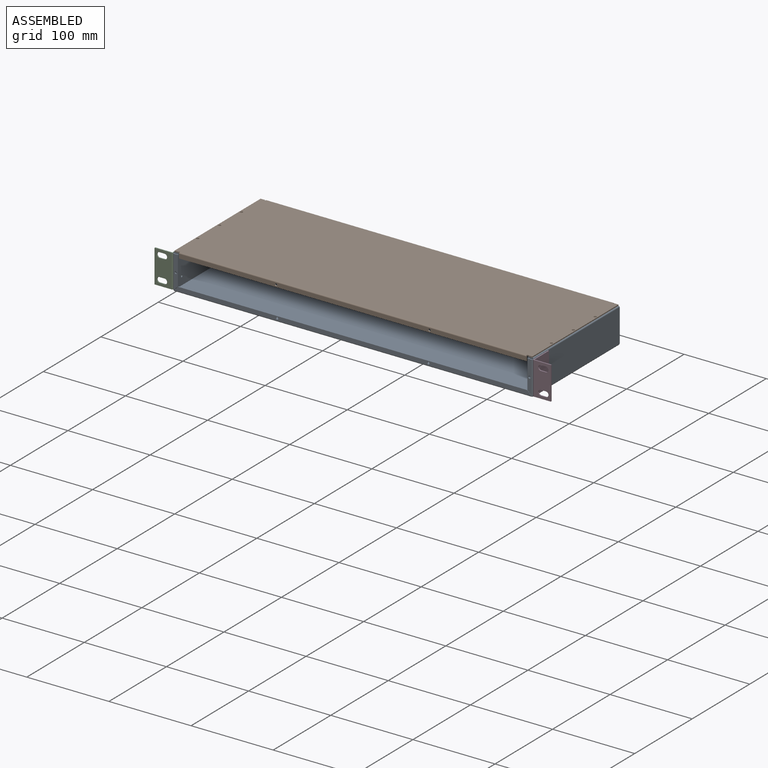
[diagram: assembled view]
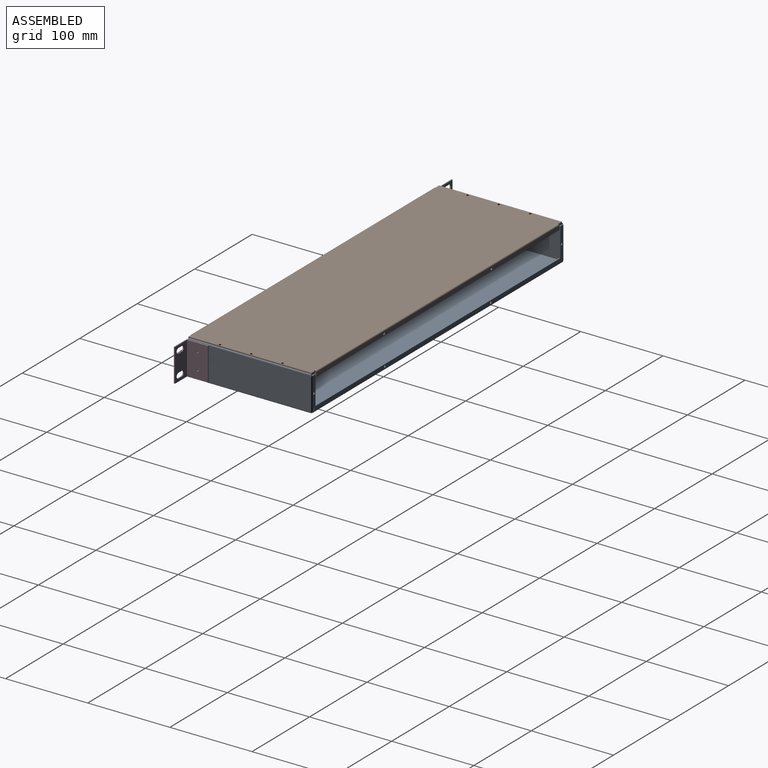
[diagram: assembled view, second angle]
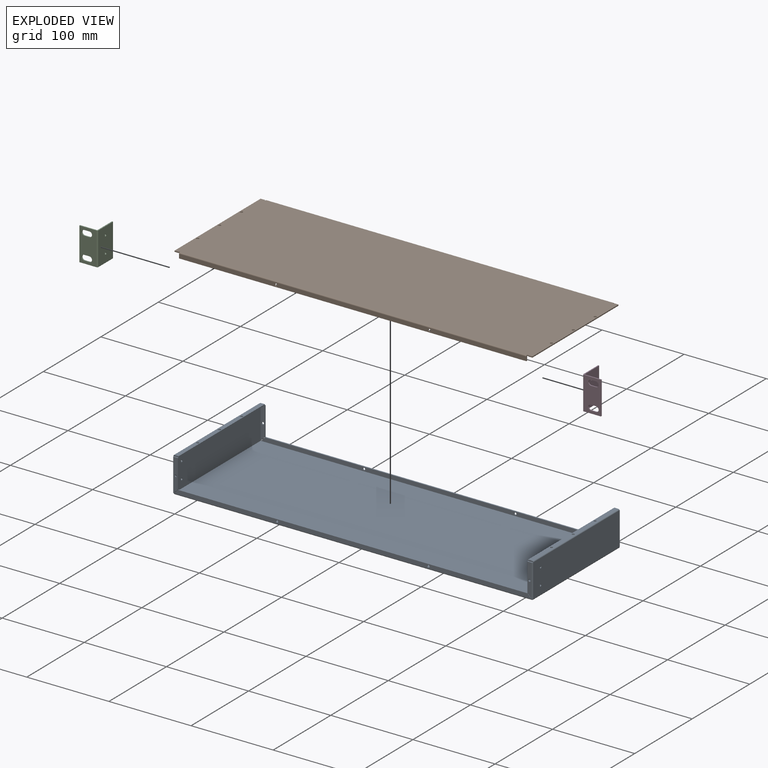
[diagram: exploded view]
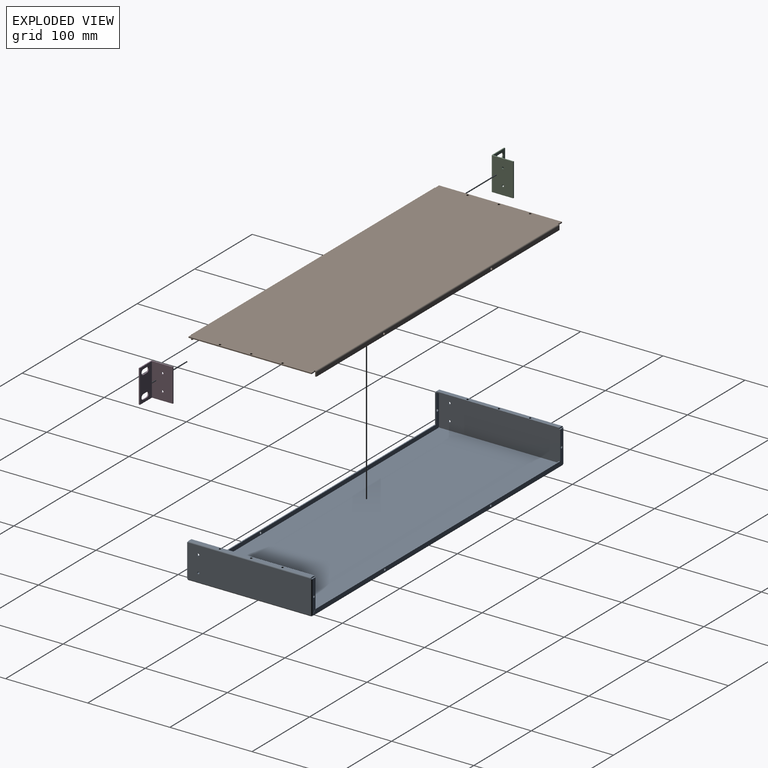
[diagram: exploded view, second angle]
ASSEMBLY  parts=4 mates=3
PART A: 120 faces, bbox 438.2x152.4x42.9 mm
  f0: plane 1.3x0.18mm, normal (0,1,0), area 0.2mm2, adj f6,f7,f15,f28
  f1: plane 1.3x0.23mm, normal (0,1,0), area 0.3mm2, adj f6,f7,f14,f42
  f2: plane 1.3x0.23mm, normal (0,-1,0), area 0.3mm2, adj f6,f7,f25,f43
  f3: plane 1.3x0.18mm, normal (0,-1,0), area 0.2mm2, adj f6,f7,f24,f29
  f4: cylinder r=1.27mm len=2.54mm, axis (-1,0,0), area 10.3mm2, adj f6,f7
  f5: cylinder r=1.27mm len=2.54mm, axis (-1,0,0), area 10.3mm2, adj f6,f7
  f6: plane 149.76x40.26mm, normal (1,0,0), area 6019mm2, adj f0,f1,f2,f3,f4,f5,f16,f26
  f7: plane 149.76x40.26mm, normal (-1,0,0), area 6019mm2, adj f0,f1,f2,f3,f4,f5,f17,f27
  f8: plane 34.82x1.3mm, normal (-1,0,0), area 45.1mm2, adj f9,f11,f12,f13
  f9: plane 5.03x1.3mm, normal (0,0,1), area 6.5mm2, adj f8,f12,f13,f14
  f10: cylinder r=1.42mm len=2.85mm, axis (0,1,0), area 11.6mm2, adj f12,f13
  f11: plane 5.03x5.03mm, normal (-0.71,0,-0.71), area 9.2mm2, adj f8,f12,f13,f15
  f12: plane 39.85x5.03mm, normal (0,1,0), area 181.4mm2, adj f8,f9,f10,f11,f16
  f13: plane 39.85x5.03mm, normal (0,-1,0), area 181.4mm2, adj f8,f9,f10,f11,f17
  f14: plane 1.32x1.32mm, normal (0,0,1), area 1.4mm2, adj f1,f9,f16,f17
  f15: plane 1.32x1.32mm, normal (0,0,-1), area 1.4mm2, adj f0,f11,f16,f17
  f16: cylinder r=1.32mm len=39.85mm, axis (0,0,1), area 82.7mm2, adj f6,f12,f14,f15
  f17: cylinder r=0.03mm len=39.85mm, axis (0,0,1), area 1.6mm2, adj f7,f13,f14,f15
  f18: plane 34.82x1.3mm, normal (-1,0,0), area 45.1mm2, adj f19,f21,f22,f23
  f19: plane 5.03x5.03mm, normal (-0.71,0,-0.71), area 9.2mm2, adj f18,f22,f23,f24
  f20: cylinder r=1.42mm len=2.85mm, axis (0,-1,0), area 11.6mm2, adj f22,f23
  f21: plane 5.03x1.3mm, normal (0,0,1), area 6.5mm2, adj f18,f22,f23,f25
  f22: plane 39.85x5.03mm, normal (0,-1,0), area 181.4mm2, adj f18,f19,f20,f21,f26
  f23: plane 39.85x5.03mm, normal (0,1,0), area 181.4mm2, adj f18,f19,f20,f21,f27
  f24: plane 1.32x1.32mm, normal (0,0,-1), area 1.4mm2, adj f3,f19,f26,f27
  f25: plane 1.32x1.32mm, normal (0,0,1), area 1.4mm2, adj f2,f21,f26,f27
  f26: cylinder r=1.32mm len=39.85mm, axis (0,0,-1), area 82.7mm2, adj f6,f22,f24,f25
  f27: cylinder r=0.03mm len=39.85mm, axis (0,0,-1), area 1.6mm2, adj f7,f23,f24,f25
  f28: plane 1.32x1.32mm, normal (0,1,0), area 1.4mm2, adj f0,f30,f31,f48
  f29: plane 1.32x1.32mm, normal (0,-1,0), area 1.4mm2, adj f3,f30,f31,f46
  f30: cylinder r=1.32mm len=149.76mm, axis (0,1,0), area 310.7mm2, adj f6,f28,f29,f50
  f31: cylinder r=0.03mm len=149.76mm, axis (0,1,0), area 6mm2, adj f7,f28,f29,f51
  f32: plane 1.3x0.03mm, normal (1,0,0), area 0mm2, adj f34,f40,f41,f43
  f33: plane 149.81x1.3mm, normal (-1,0,0), area 194.1mm2, adj f34,f39,f40,f41
  f34: plane 5.03x1.3mm, normal (0,-1,0), area 6.5mm2, adj f32,f33,f40,f41
  f35: plane 1.3x0.03mm, normal (1,0,0), area 0mm2, adj f39,f40,f41,f42
  f36: cylinder r=1.42mm len=2.85mm, axis (0,0,1), area 11.6mm2, adj f40,f41
  f37: cylinder r=1.42mm len=2.85mm, axis (0,0,1), area 11.6mm2, adj f40,f41
  f38: cylinder r=1.42mm len=2.85mm, axis (0,0,1), area 11.6mm2, adj f40,f41
  f39: plane 5.03x1.3mm, normal (0,1,0), area 6.5mm2, adj f33,f35,f40,f41
  f40: plane 149.81x5.03mm, normal (0,0,1), area 734.4mm2, adj f32,f33,f34,f35,f36,f37,f38,f39
  f41: plane 149.81x5.03mm, normal (0,0,-1), area 734.4mm2, adj f32,f33,f34,f35,f36,f37,f38,f39
  f42: plane 1.32x1.32mm, normal (0,1,0), area 1.4mm2, adj f1,f35,f44,f45
  f43: plane 1.32x1.32mm, normal (0,-1,0), area 1.4mm2, adj f2,f32,f44,f45
  f44: cylinder r=1.32mm len=149.76mm, axis (0,1,0), area 310.7mm2, adj f6,f40,f42,f43
  f45: cylinder r=0.03mm len=149.76mm, axis (0,1,0), area 6mm2, adj f7,f41,f42,f43
  f46: plane 1.3x0.18mm, normal (0,-1,0), area 0.2mm2, adj f29,f50,f51,f71
  f47: plane 1.3x0.18mm, normal (0,1,0), area 0.2mm2, adj f50,f51,f59,f74
  f48: plane 1.3x0.18mm, normal (0,1,0), area 0.2mm2, adj f28,f50,f51,f60
  f49: plane 1.3x0.18mm, normal (0,-1,0), area 0.2mm2, adj f50,f51,f70,f75
  f50: plane 435.53x149.76mm, normal (0,0,-1), area 65224.8mm2, adj f30,f46,f47,f48,f49,f61,f72,f76
  f51: plane 435.53x149.76mm, normal (0,0,1), area 65224.8mm2, adj f31,f46,f47,f48,f49,f62,f73,f77
  f52: plane 425.12x1.3mm, normal (0,0,1), area 550.7mm2, adj f53,f56,f57,f58
  f53: plane 5.03x5.03mm, normal (0.71,0,0.71), area 9.2mm2, adj f52,f57,f58,f60
  f54: cylinder r=1.42mm len=2.85mm, axis (0,1,0), area 11.6mm2, adj f57,f58
  f55: cylinder r=1.42mm len=2.85mm, axis (0,1,0), area 11.6mm2, adj f57,f58
  f56: plane 5.03x5.03mm, normal (-0.71,0,0.71), area 9.2mm2, adj f52,f57,f58,f59
  f57: plane 435.17x5.03mm, normal (0,1,0), area 2150.6mm2, adj f52,f53,f54,f55,f56,f61
  f58: plane 435.17x5.03mm, normal (0,-1,0), area 2150.6mm2, adj f52,f53,f54,f55,f56,f62
  f59: plane 1.32x1.32mm, normal (-1,0,0), area 1.4mm2, adj f47,f56,f61,f62
  f60: plane 1.32x1.32mm, normal (1,0,0), area 1.4mm2, adj f48,f53,f61,f62
  f61: cylinder r=1.32mm len=435.17mm, axis (-1,0,0), area 902.9mm2, adj f50,f57,f59,f60
  f62: cylinder r=0.03mm len=435.17mm, axis (-1,0,0), area 17.4mm2, adj f51,f58,f59,f60
  f63: plane 425.12x1.3mm, normal (0,0,1), area 550.7mm2, adj f64,f67,f68,f69
  f64: plane 5.03x5.03mm, normal (-0.71,0,0.71), area 9.2mm2, adj f63,f68,f69,f70
  f65: cylinder r=1.42mm len=2.85mm, axis (0,-1,0), area 11.6mm2, adj f68,f69
  f66: cylinder r=1.42mm len=2.85mm, axis (0,-1,0), area 11.6mm2, adj f68,f69
  f67: plane 5.03x5.03mm, normal (0.71,0,0.71), area 9.2mm2, adj f63,f68,f69,f71
  f68: plane 435.17x5.03mm, normal (0,-1,0), area 2150.6mm2, adj f63,f64,f65,f66,f67,f72
  f69: plane 435.17x5.03mm, normal (0,1,0), area 2150.6mm2, adj f63,f64,f65,f66,f67,f73
  f70: plane 1.32x1.32mm, normal (-1,0,0), area 1.4mm2, adj f49,f64,f72,f73
  f71: plane 1.32x1.32mm, normal (1,0,0), area 1.4mm2, adj f46,f67,f72,f73
  f72: cylinder r=1.32mm len=435.17mm, axis (-1,0,0), area 902.9mm2, adj f50,f68,f70,f71
  f73: cylinder r=0.03mm len=435.17mm, axis (-1,0,0), area 17.4mm2, adj f51,f69,f70,f71
  f74: plane 1.32x1.32mm, normal (0,1,0), area 1.4mm2, adj f47,f76,f77,f81
  f75: plane 1.32x1.32mm, normal (0,-1,0), area 1.4mm2, adj f49,f76,f77,f78
  f76: cylinder r=1.32mm len=149.76mm, axis (0,1,0), area 310.7mm2, adj f50,f74,f75,f84
  f77: cylinder r=0.03mm len=149.76mm, axis (0,1,0), area 6mm2, adj f51,f74,f75,f85
  f78: plane 1.3x0.18mm, normal (0,-1,0), area 0.2mm2, adj f75,f84,f85,f93
  f79: plane 1.3x0.23mm, normal (0,-1,0), area 0.3mm2, adj f84,f85,f92,f117
  f80: plane 1.3x0.23mm, normal (0,1,0), area 0.3mm2, adj f84,f85,f103,f116
  f81: plane 1.3x0.18mm, normal (0,1,0), area 0.2mm2, adj f74,f84,f85,f102
  f82: cylinder r=1.27mm len=2.54mm, axis (-1,0,0), area 10.3mm2, adj f84,f85
  f83: cylinder r=1.27mm len=2.54mm, axis (-1,0,0), area 10.3mm2, adj f84,f85
  f84: plane 149.76x40.26mm, normal (-1,0,0), area 6019mm2, adj f76,f78,f79,f80,f81,f82,f83,f94
  f85: plane 149.76x40.26mm, normal (1,0,0), area 6019mm2, adj f77,f78,f79,f80,f81,f82,f83,f95
  f86: plane 34.82x1.3mm, normal (1,0,0), area 45.1mm2, adj f87,f89,f90,f91
  f87: plane 5.03x1.3mm, normal (0,0,1), area 6.5mm2, adj f86,f90,f91,f92
  f88: cylinder r=1.42mm len=2.85mm, axis (0,-1,0), area 11.6mm2, adj f90,f91
  f89: plane 5.03x5.03mm, normal (0.71,0,-0.71), area 9.2mm2, adj f86,f90,f91,f93
  f90: plane 39.85x5.03mm, normal (0,-1,0), area 181.4mm2, adj f86,f87,f88,f89,f94
  f91: plane 39.85x5.03mm, normal (0,1,0), area 181.4mm2, adj f86,f87,f88,f89,f95
  f92: plane 1.32x1.32mm, normal (0,0,1), area 1.4mm2, adj f79,f87,f94,f95
  f93: plane 1.32x1.32mm, normal (0,0,-1), area 1.4mm2, adj f78,f89,f94,f95
  f94: cylinder r=1.32mm len=39.85mm, axis (0,0,1), area 82.7mm2, adj f84,f90,f92,f93
  f95: cylinder r=0.03mm len=39.85mm, axis (0,0,1), area 1.6mm2, adj f85,f91,f92,f93
  f96: plane 34.82x1.3mm, normal (1,0,0), area 45.1mm2, adj f97,f99,f100,f101
  f97: plane 5.03x5.03mm, normal (0.71,0,-0.71), area 9.2mm2, adj f96,f100,f101,f102
  f98: cylinder r=1.42mm len=2.85mm, axis (0,1,0), area 11.6mm2, adj f100,f101
  f99: plane 5.03x1.3mm, normal (0,0,1), area 6.5mm2, adj f96,f100,f101,f103
  f100: plane 39.85x5.03mm, normal (0,1,0), area 181.4mm2, adj f96,f97,f98,f99,f104
  f101: plane 39.85x5.03mm, normal (0,-1,0), area 181.4mm2, adj f96,f97,f98,f99,f105
  f102: plane 1.32x1.32mm, normal (0,0,-1), area 1.4mm2, adj f81,f97,f104,f105
  f103: plane 1.32x1.32mm, normal (0,0,1), area 1.4mm2, adj f80,f99,f104,f105
  f104: cylinder r=1.32mm len=39.85mm, axis (0,0,-1), area 82.7mm2, adj f84,f100,f102,f103
  f105: cylinder r=0.03mm len=39.85mm, axis (0,0,-1), area 1.6mm2, adj f85,f101,f102,f103
  f106: plane 1.3x0.03mm, normal (-1,0,0), area 0mm2, adj f108,f114,f115,f116
  f107: plane 149.81x1.3mm, normal (1,0,0), area 194.1mm2, adj f108,f113,f114,f115
  f108: plane 5.03x1.3mm, normal (0,1,0), area 6.5mm2, adj f106,f107,f114,f115
  f109: plane 1.3x0.03mm, normal (-1,0,0), area 0mm2, adj f113,f114,f115,f117
  f110: cylinder r=1.42mm len=2.85mm, axis (0,0,1), area 11.6mm2, adj f114,f115
  f111: cylinder r=1.42mm len=2.85mm, axis (0,0,1), area 11.6mm2, adj f114,f115
  f112: cylinder r=1.42mm len=2.85mm, axis (0,0,1), area 11.6mm2, adj f114,f115
  f113: plane 5.03x1.3mm, normal (0,-1,0), area 6.5mm2, adj f107,f109,f114,f115
  f114: plane 149.81x5.03mm, normal (0,0,1), area 734.4mm2, adj f106,f107,f108,f109,f110,f111,f112,f113
  f115: plane 149.81x5.03mm, normal (0,0,-1), area 734.4mm2, adj f106,f107,f108,f109,f110,f111,f112,f113
  f116: plane 1.32x1.32mm, normal (0,1,0), area 1.4mm2, adj f80,f106,f118,f119
  f117: plane 1.32x1.32mm, normal (0,-1,0), area 1.4mm2, adj f79,f109,f118,f119
  f118: cylinder r=1.32mm len=149.76mm, axis (0,1,0), area 310.7mm2, adj f84,f114,f116,f117
  f119: cylinder r=0.03mm len=149.76mm, axis (0,1,0), area 6mm2, adj f85,f115,f116,f117
PART B: 48 faces, bbox 435.6x152.4x6.4 mm
  f0: plane 4.97x1.3mm, normal (0,1,0), area 6.4mm2, adj f2,f3,f4,f19
  f1: plane 4.97x1.3mm, normal (0,-1,0), area 6.4mm2, adj f2,f3,f6,f25
  f2: plane 435.58x149.76mm, normal (0,0,1), area 65189.1mm2, adj f0,f1,f4,f5,f6,f7,f8,f9
  f3: plane 435.58x149.76mm, normal (0,0,-1), area 65189.1mm2, adj f0,f1,f4,f5,f6,f7,f8,f9
  f4: plane 149.76x1.3mm, normal (1,0,0), area 194mm2, adj f0,f2,f3,f13
  f5: plane 4.97x1.3mm, normal (0,1,0), area 6.4mm2, adj f2,f3,f6,f21
  f6: plane 149.76x1.3mm, normal (-1,0,0), area 194mm2, adj f1,f2,f3,f5
  f7: cylinder r=1.46mm len=2.92mm, axis (0,0,1), area 11.9mm2, adj f2,f3
  f8: cylinder r=1.46mm len=2.92mm, axis (0,0,1), area 11.9mm2, adj f2,f3
  f9: cylinder r=1.46mm len=2.92mm, axis (0,0,1), area 11.9mm2, adj f2,f3
  f10: cylinder r=1.46mm len=2.92mm, axis (0,0,1), area 11.9mm2, adj f2,f3
  f11: cylinder r=1.46mm len=2.92mm, axis (0,0,1), area 11.9mm2, adj f2,f3
  f12: cylinder r=1.46mm len=2.92mm, axis (0,0,1), area 11.9mm2, adj f2,f3
  f13: plane 4.97x1.3mm, normal (0,-1,0), area 6.4mm2, adj f2,f3,f4,f15
  f14: cylinder r=0.69mm len=1.38mm, axis (0,0,-1), area 2.8mm2, adj f2,f3,f15,f16
  f15: plane 1.3x0.03mm, normal (-1,0,0), area 0mm2, adj f2,f3,f13,f14
  f16: plane 1.3x0.03mm, normal (1,0,0), area 0mm2, adj f2,f3,f14,f34
  f17: cylinder r=0.69mm len=1.38mm, axis (0,0,-1), area 2.8mm2, adj f2,f3,f18,f19
  f18: plane 1.3x0.03mm, normal (1,0,0), area 0mm2, adj f2,f3,f17,f45
  f19: plane 1.3x0.03mm, normal (-1,0,0), area 0mm2, adj f0,f2,f3,f17
  f20: cylinder r=0.69mm len=1.38mm, axis (0,0,-1), area 2.8mm2, adj f2,f3,f21,f22
  f21: plane 1.3x0.03mm, normal (1,0,0), area 0mm2, adj f2,f3,f5,f20
  f22: plane 1.3x0.03mm, normal (-1,0,0), area 0mm2, adj f2,f3,f20,f44
  f23: cylinder r=0.69mm len=1.38mm, axis (0,0,-1), area 2.8mm2, adj f2,f3,f24,f25
  f24: plane 1.3x0.03mm, normal (-1,0,0), area 0mm2, adj f2,f3,f23,f33
  f25: plane 1.3x0.03mm, normal (1,0,0), area 0mm2, adj f1,f2,f3,f23
  f26: plane 5.03x1.3mm, normal (-1,0,0), area 6.5mm2, adj f27,f31,f32,f33
  f27: plane 422.88x1.3mm, normal (0,0,-1), area 547.8mm2, adj f26,f30,f31,f32
  f28: cylinder r=1.42mm len=2.85mm, axis (0,-1,0), area 11.6mm2, adj f31,f32
  f29: cylinder r=1.42mm len=2.85mm, axis (0,-1,0), area 11.6mm2, adj f31,f32
  f30: plane 5.03x1.3mm, normal (1,0,0), area 6.5mm2, adj f27,f31,f32,f34
  f31: plane 422.88x5.03mm, normal (0,-1,0), area 2114.1mm2, adj f26,f27,f28,f29,f30,f35
  f32: plane 422.88x5.03mm, normal (0,1,0), area 2114.1mm2, adj f26,f27,f28,f29,f30,f36
  f33: plane 1.32x1.32mm, normal (-1,0,0), area 1.4mm2, adj f24,f26,f35,f36
  f34: plane 1.32x1.32mm, normal (1,0,0), area 1.4mm2, adj f16,f30,f35,f36
  f35: cylinder r=1.32mm len=422.88mm, axis (-1,0,0), area 877.4mm2, adj f2,f31,f33,f34
  f36: cylinder r=0.03mm len=422.88mm, axis (-1,0,0), area 16.9mm2, adj f3,f32,f33,f34
  f37: plane 422.88x1.3mm, normal (0,0,-1), area 547.8mm2, adj f38,f41,f42,f43
  f38: plane 5.03x1.3mm, normal (-1,0,0), area 6.5mm2, adj f37,f42,f43,f44
  f39: cylinder r=1.42mm len=2.85mm, axis (0,1,0), area 11.6mm2, adj f42,f43
  f40: cylinder r=1.42mm len=2.85mm, axis (0,1,0), area 11.6mm2, adj f42,f43
  f41: plane 5.03x1.3mm, normal (1,0,0), area 6.5mm2, adj f37,f42,f43,f45
  f42: plane 422.88x5.03mm, normal (0,1,0), area 2114.1mm2, adj f37,f38,f39,f40,f41,f46
  f43: plane 422.88x5.03mm, normal (0,-1,0), area 2114.1mm2, adj f37,f38,f39,f40,f41,f47
  f44: plane 1.32x1.32mm, normal (-1,0,0), area 1.4mm2, adj f22,f38,f46,f47
  f45: plane 1.32x1.32mm, normal (1,0,0), area 1.4mm2, adj f18,f41,f46,f47
  f46: cylinder r=1.32mm len=422.88mm, axis (-1,0,0), area 877.4mm2, adj f2,f42,f44,f45
  f47: cylinder r=0.03mm len=422.88mm, axis (-1,0,0), area 16.9mm2, adj f3,f43,f44,f45
PART C: 26 faces, bbox 22.2x26.7x40.3 mm
  f0: plane 25.37x1.3mm, normal (0,0,-1), area 32.9mm2, adj f1,f5,f6,f22
  f1: plane 40.31x1.3mm, normal (0,1,0), area 52.2mm2, adj f0,f2,f5,f6
  f2: plane 25.37x1.3mm, normal (0,0,1), area 32.9mm2, adj f1,f5,f6,f23
  f3: cylinder r=1.27mm len=2.54mm, axis (-1,0,0), area 10.3mm2, adj f5,f6
  f4: cylinder r=1.27mm len=2.54mm, axis (-1,0,0), area 10.3mm2, adj f5,f6
  f5: plane 40.31x25.37mm, normal (1,0,0), area 1012.7mm2, adj f0,f1,f2,f3,f4,f24
  f6: plane 40.31x25.37mm, normal (-1,0,0), area 1012.7mm2, adj f0,f1,f2,f3,f4,f25
  f7: cylinder r=3.17mm len=6.35mm, axis (0,-1,0), area 12.9mm2, adj f8,f17,f18,f19
  f8: plane 6.1x1.3mm, normal (0,0,1), area 7.9mm2, adj f7,f9,f18,f19
  f9: cylinder r=3.17mm len=6.35mm, axis (0,-1,0), area 12.9mm2, adj f8,f17,f18,f19
  f10: plane 6.1x1.3mm, normal (0,0,-1), area 7.9mm2, adj f11,f16,f18,f19
  f11: cylinder r=3.17mm len=6.35mm, axis (0,-1,0), area 12.9mm2, adj f10,f12,f18,f19
  f12: plane 6.1x1.3mm, normal (0,0,1), area 7.9mm2, adj f11,f16,f18,f19
  f13: plane 40.06x1.3mm, normal (-1,0,0), area 51.9mm2, adj f18,f19,f20,f21
  f14: plane 20.76x1.3mm, normal (0,0,-1), area 26.9mm2, adj f18,f19,f20,f22
  f15: plane 20.76x1.3mm, normal (0,0,1), area 26.9mm2, adj f18,f19,f21,f23
  f16: cylinder r=3.17mm len=6.35mm, axis (0,-1,0), area 12.9mm2, adj f10,f12,f18,f19
  f17: plane 6.1x1.3mm, normal (0,0,-1), area 7.9mm2, adj f7,f9,f18,f19
  f18: plane 40.31x20.89mm, normal (0,-1,0), area 701.4mm2, adj f7,f8,f9,f10,f11,f12,f13,f14
  f19: plane 40.31x20.89mm, normal (0,1,0), area 701.4mm2, adj f7,f8,f9,f10,f11,f12,f13,f14
  f20: cylinder r=0.13mm len=1.3mm, axis (0,-1,0), area 0.3mm2, adj f13,f14,f18,f19
  f21: cylinder r=0.13mm len=1.3mm, axis (0,1,0), area 0.3mm2, adj f13,f15,f18,f19
  f22: plane 1.32x1.32mm, normal (0,0,-1), area 1.4mm2, adj f0,f14,f24,f25
  f23: plane 1.32x1.32mm, normal (0,0,1), area 1.4mm2, adj f2,f15,f24,f25
  f24: cylinder r=1.32mm len=40.31mm, axis (0,0,-1), area 83.6mm2, adj f5,f18,f22,f23
  f25: cylinder r=0.03mm len=40.31mm, axis (0,0,-1), area 1.6mm2, adj f6,f19,f22,f23
PART D: 26 faces, bbox 22.2x26.7x40.3 mm
  f0: plane 25.37x1.3mm, normal (0,0,1), area 32.9mm2, adj f1,f5,f6,f23
  f1: plane 40.31x1.3mm, normal (0,1,0), area 52.2mm2, adj f0,f4,f5,f6
  f2: cylinder r=1.27mm len=2.54mm, axis (1,0,0), area 10.3mm2, adj f5,f6
  f3: cylinder r=1.27mm len=2.54mm, axis (1,0,0), area 10.3mm2, adj f5,f6
  f4: plane 25.37x1.3mm, normal (0,0,-1), area 32.9mm2, adj f1,f5,f6,f22
  f5: plane 40.31x25.37mm, normal (-1,0,0), area 1012.7mm2, adj f0,f1,f2,f3,f4,f24
  f6: plane 40.31x25.37mm, normal (1,0,0), area 1012.7mm2, adj f0,f1,f2,f3,f4,f25
  f7: plane 6.1x1.3mm, normal (0,0,1), area 7.9mm2, adj f8,f17,f18,f19
  f8: cylinder r=3.17mm len=6.35mm, axis (0,1,0), area 12.9mm2, adj f7,f9,f18,f19
  f9: plane 6.1x1.3mm, normal (0,0,-1), area 7.9mm2, adj f8,f17,f18,f19
  f10: plane 40.06x1.3mm, normal (1,0,0), area 51.9mm2, adj f18,f19,f20,f21
  f11: plane 20.76x1.3mm, normal (0,0,1), area 26.9mm2, adj f18,f19,f21,f23
  f12: cylinder r=3.17mm len=6.35mm, axis (0,1,0), area 12.9mm2, adj f13,f15,f18,f19
  f13: plane 6.1x1.3mm, normal (0,0,-1), area 7.9mm2, adj f12,f14,f18,f19
  f14: cylinder r=3.17mm len=6.35mm, axis (0,1,0), area 12.9mm2, adj f13,f15,f18,f19
  f15: plane 6.1x1.3mm, normal (0,0,1), area 7.9mm2, adj f12,f14,f18,f19
  f16: plane 20.76x1.3mm, normal (0,0,-1), area 26.9mm2, adj f18,f19,f20,f22
  f17: cylinder r=3.17mm len=6.35mm, axis (0,1,0), area 12.9mm2, adj f7,f9,f18,f19
  f18: plane 40.31x20.89mm, normal (0,-1,0), area 701.4mm2, adj f7,f8,f9,f10,f11,f12,f13,f14
  f19: plane 40.31x20.89mm, normal (0,1,0), area 701.4mm2, adj f7,f8,f9,f10,f11,f12,f13,f14
  f20: cylinder r=0.13mm len=1.3mm, axis (0,-1,0), area 0.3mm2, adj f10,f16,f18,f19
  f21: cylinder r=0.13mm len=1.3mm, axis (0,1,0), area 0.3mm2, adj f10,f11,f18,f19
  f22: plane 1.32x1.32mm, normal (0,0,-1), area 1.4mm2, adj f4,f16,f24,f25
  f23: plane 1.32x1.32mm, normal (0,0,1), area 1.4mm2, adj f0,f11,f24,f25
  f24: cylinder r=1.32mm len=40.31mm, axis (0,0,-1), area 83.6mm2, adj f5,f18,f22,f23
  f25: cylinder r=0.03mm len=40.31mm, axis (0,0,-1), area 1.6mm2, adj f6,f19,f22,f23
PLACE A at identity
PLACE B t=(0,0,-2.84)mm
PLACE C t=(-1.31,1.32,0)mm
PLACE D t=(1.31,1.32,0)mm
MATE fastened D.f3 <-> A.f4  axis (-1,0,0) through (219.09,-62.18,30.15)mm
MATE fastened A.f110 <-> B.f7  axis (0,0,1) through (-215.25,-38.1,41.61)mm
MATE fastened A.f4 <-> C.f4  axis (-1,0,0) through (-219.09,-62.18,30.15)mm
